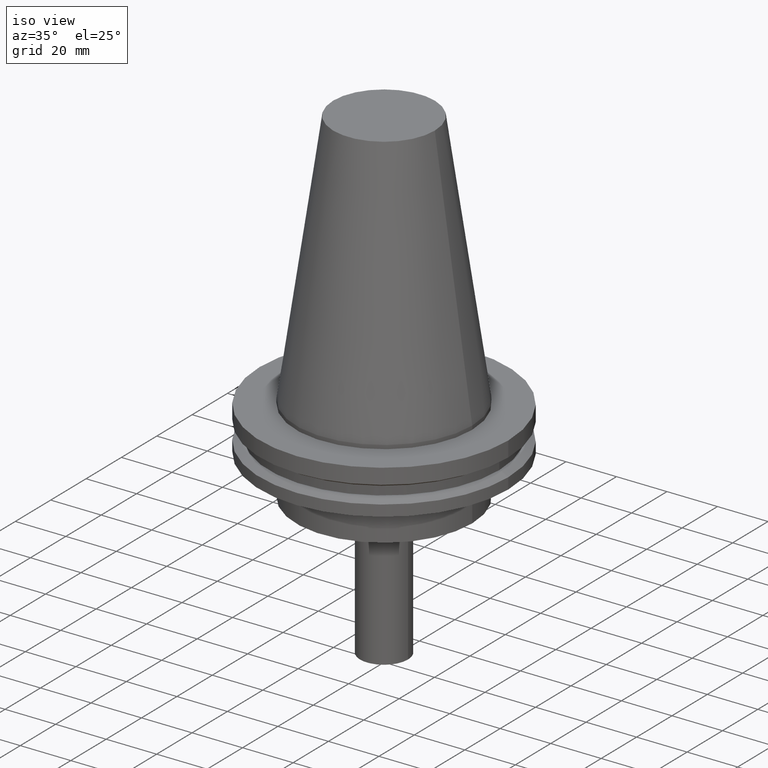
[diagram: clean part render]
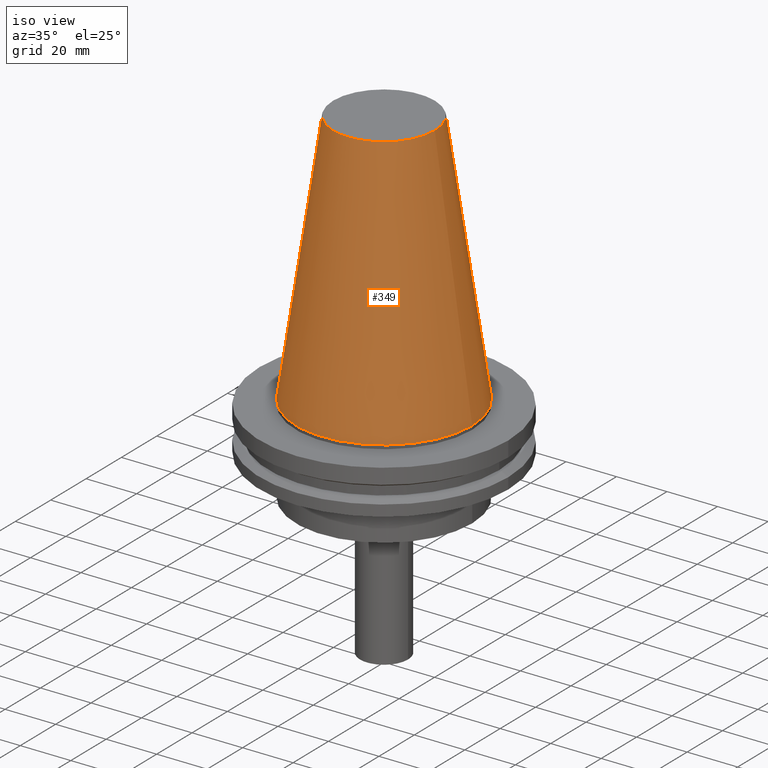
[diagram: tour spotlight — one face highlighted and labeled with its STEP entity id]
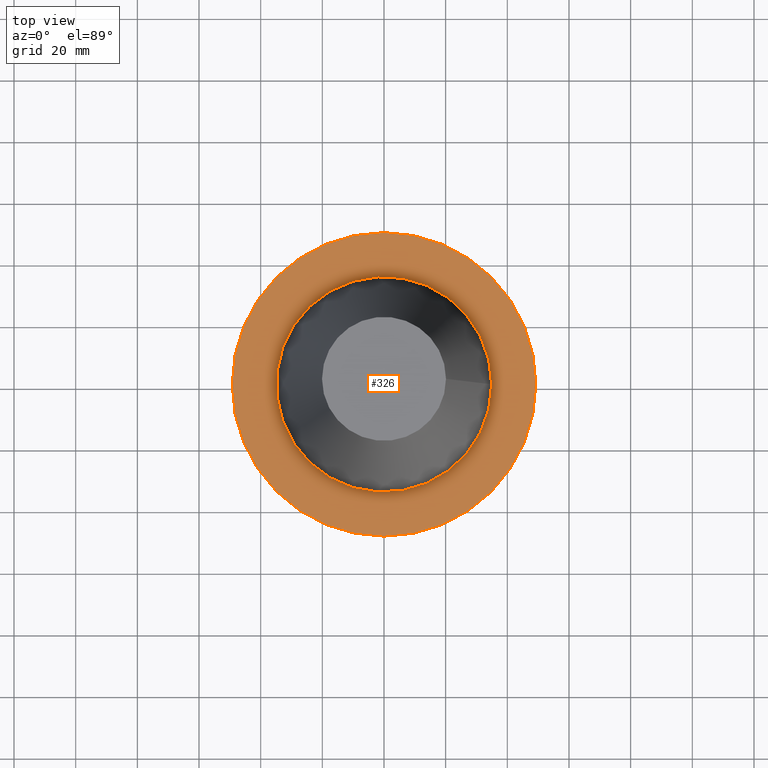
[diagram: tour spotlight — one face highlighted and labeled with its STEP entity id]
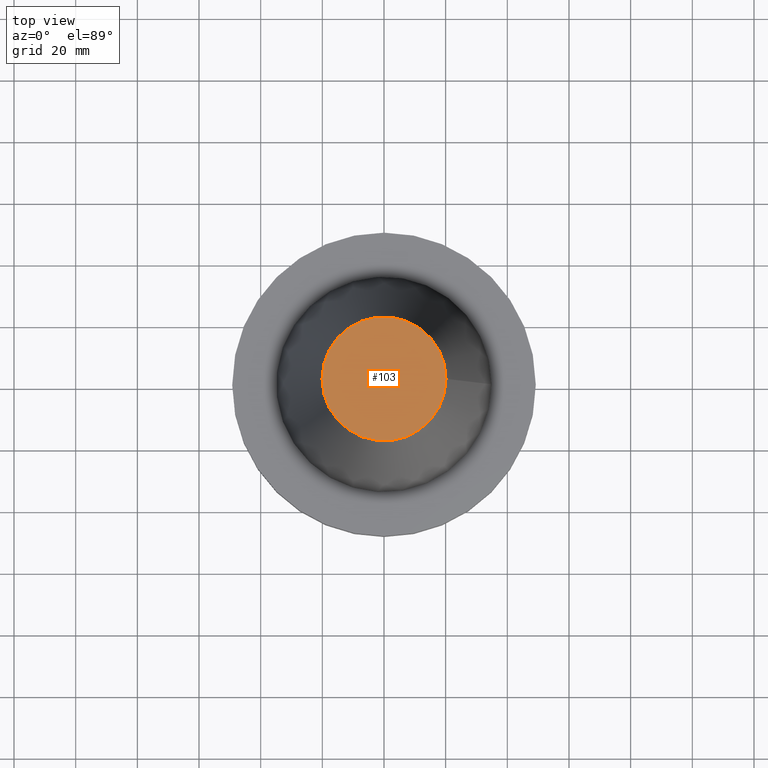
[diagram: tour spotlight — one face highlighted and labeled with its STEP entity id]
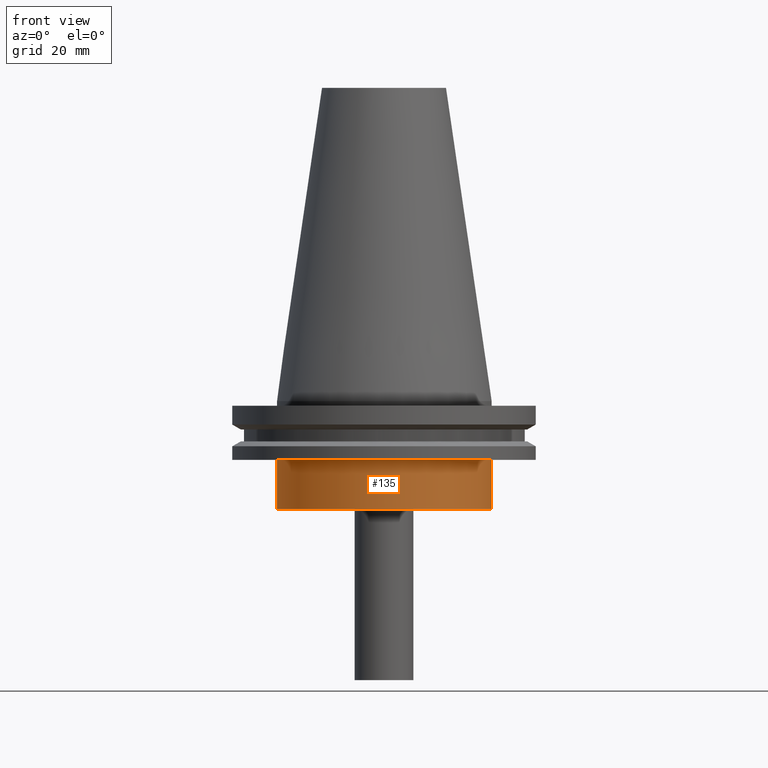
[diagram: tour spotlight — one face highlighted and labeled with its STEP entity id]
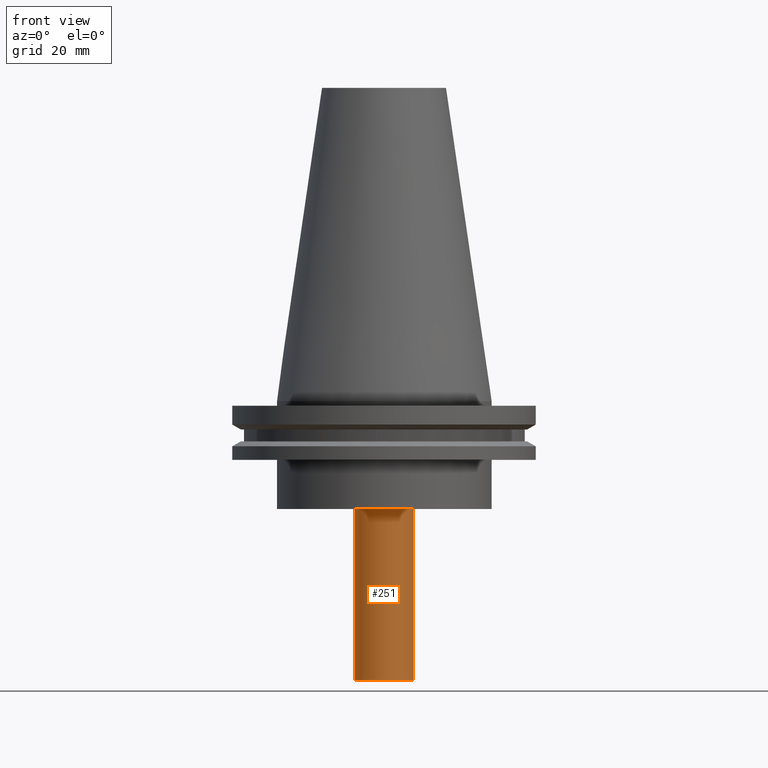
[diagram: tour spotlight — one face highlighted and labeled with its STEP entity id]
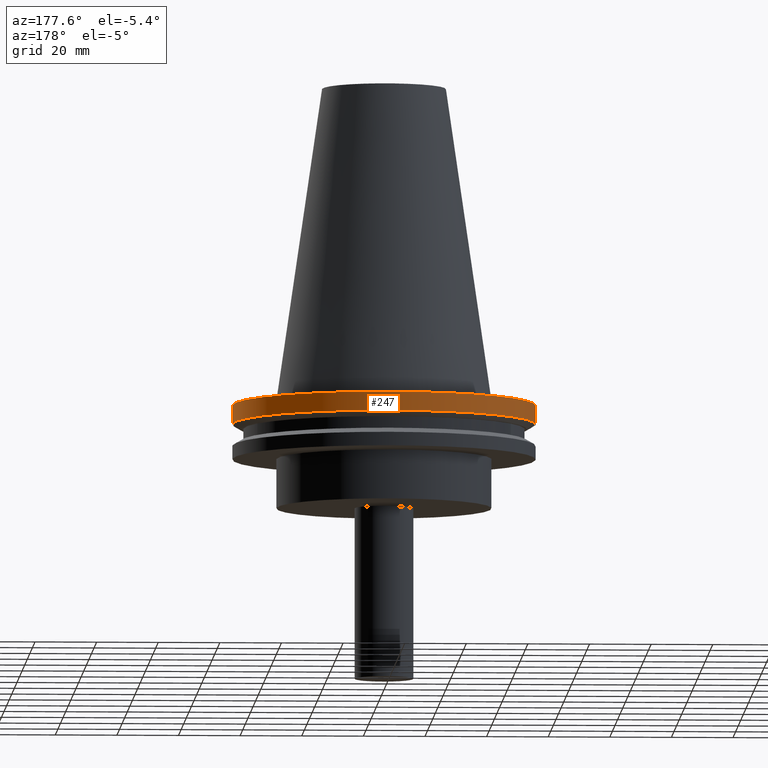
[diagram: tour spotlight — one face highlighted and labeled with its STEP entity id]
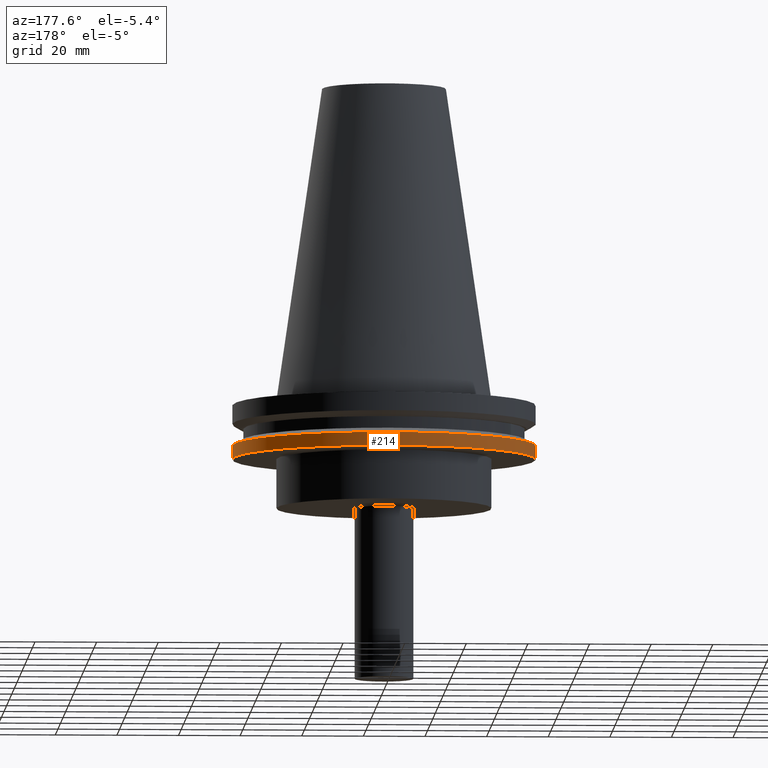
[diagram: tour spotlight — one face highlighted and labeled with its STEP entity id]
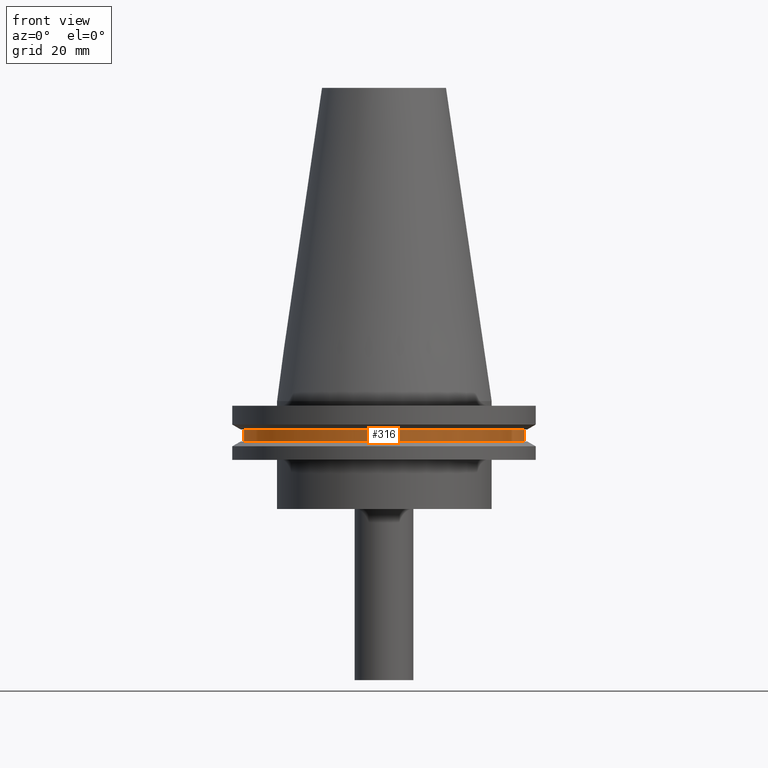
[diagram: tour spotlight — one face highlighted and labeled with its STEP entity id]
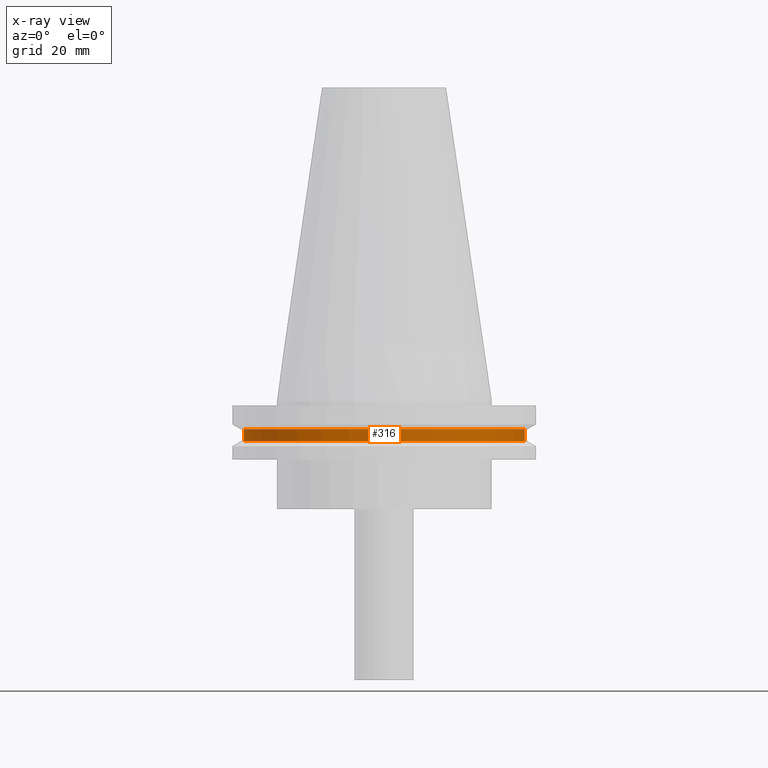
[diagram: x-ray of the same camera — body ghosted, this tour face saturated]
A machine part: a face-by-face anatomy tour. The part has 16 B-rep faces; the first image is the clean iso view, then the 8 largest visible faces are spotlighted one at a time (largest first), each with its STEP entity span.

Face 1 — iso view, entity #349. In plain terms, the highlighted conical surface has half-angle 8.297 deg.
Definition (entity closure, byte-faithful):
#18 = CARTESIAN_POINT ( 'NONE',  ( 0.000000000000000000, 0.000000000000000000, 0.000000000000000000 ) ) ;
#21 = EDGE_CURVE ( 'NONE', #136, #136, #39, .T. ) ;
#35 = DIRECTION ( 'NONE',  ( -0.000000000000000000, -0.000000000000000000, 1.000000000000000000 ) ) ;
#39 = CIRCLE ( 'NONE', #297, 34.92499999999999005 ) ;
#40 = CONICAL_SURFACE ( 'NONE', #194, 34.92499999999999005, 0.1448138465474119452 ) ;
#86 = CARTESIAN_POINT ( 'NONE',  ( 20.10819343178871321, 0.000000000000000000, 101.5999999999999801 ) ) ;
#95 = DIRECTION ( 'NONE',  ( 1.000000000000000000, 0.000000000000000000, 0.000000000000000000 ) ) ;
#105 = DIRECTION ( 'NONE',  ( 0.000000000000000000, 0.000000000000000000, -1.000000000000000000 ) ) ;
#112 = DIRECTION ( 'NONE',  ( -1.000000000000000000, 0.000000000000000000, 0.000000000000000000 ) ) ;
#124 = ORIENTED_EDGE ( 'NONE', *, *, #364, .F. ) ;
#136 = VERTEX_POINT ( 'NONE', #262 ) ;
#140 = DIRECTION ( 'NONE',  ( 1.000000000000000000, 0.000000000000000000, 0.000000000000000000 ) ) ;
#143 = FACE_BOUND ( 'NONE', #250, .T. ) ;
#163 = AXIS2_PLACEMENT_3D ( 'NONE', #357, #298, #140 ) ;
#194 = AXIS2_PLACEMENT_3D ( 'NONE', #18, #105, #112 ) ;
#250 = EDGE_LOOP ( 'NONE', ( #124 ) ) ;
#262 = CARTESIAN_POINT ( 'NONE',  ( 34.92499999999999005, 0.000000000000000000, 0.000000000000000000 ) ) ;
#272 = FACE_OUTER_BOUND ( 'NONE', #337, .T. ) ;
#276 = VERTEX_POINT ( 'NONE', #86 ) ;
#297 = AXIS2_PLACEMENT_3D ( 'NONE', #317, #35, #95 ) ;
#298 = DIRECTION ( 'NONE',  ( -0.000000000000000000, -0.000000000000000000, 1.000000000000000000 ) ) ;
#315 = ORIENTED_EDGE ( 'NONE', *, *, #21, .T. ) ;
#317 = CARTESIAN_POINT ( 'NONE',  ( 0.000000000000000000, 0.000000000000000000, 0.000000000000000000 ) ) ;
#337 = EDGE_LOOP ( 'NONE', ( #315 ) ) ;
#338 = CIRCLE ( 'NONE', #163, 20.10819343178871321 ) ;
#349 = ADVANCED_FACE ( 'NONE', ( #143, #272 ), #40, .T. ) ;
#357 = CARTESIAN_POINT ( 'NONE',  ( 0.000000000000000000, 0.000000000000000000, 101.5999999999999801 ) ) ;
#364 = EDGE_CURVE ( 'NONE', #276, #276, #338, .T. ) ;

Face 2 — top view, entity #326. In plain terms, the highlighted planar face has unit normal (0, 0, -1).
Definition (entity closure, byte-faithful):
#26 = CARTESIAN_POINT ( 'NONE',  ( 0.000000000000000000, 49.21499999999999631, -1.499999999999992895 ) ) ;
#27 = EDGE_CURVE ( 'NONE', #109, #109, #356, .T. ) ;
#43 = CARTESIAN_POINT ( 'NONE',  ( 0.000000000000000000, 0.000000000000000000, -1.499999999999987566 ) ) ;
#49 = PLANE ( 'NONE',  #139 ) ;
#65 = EDGE_LOOP ( 'NONE', ( #244 ) ) ;
#82 = DIRECTION ( 'NONE',  ( -1.000000000000000000, 0.000000000000000000, -0.000000000000000000 ) ) ;
#91 = EDGE_LOOP ( 'NONE', ( #342 ) ) ;
#104 = CIRCLE ( 'NONE', #177, 34.92499999999999005 ) ;
#109 = VERTEX_POINT ( 'NONE', #146 ) ;
#139 = AXIS2_PLACEMENT_3D ( 'NONE', #26, #173, #82 ) ;
#146 = CARTESIAN_POINT ( 'NONE',  ( 49.21499999999999631, 0.000000000000000000, -1.499999999999987566 ) ) ;
#170 = EDGE_CURVE ( 'NONE', #314, #314, #104, .T. ) ;
#173 = DIRECTION ( 'NONE',  ( 0.000000000000000000, 0.000000000000000000, -1.000000000000000000 ) ) ;
#177 = AXIS2_PLACEMENT_3D ( 'NONE', #43, #195, #288 ) ;
#195 = DIRECTION ( 'NONE',  ( -0.000000000000000000, -0.000000000000000000, 1.000000000000000000 ) ) ;
#203 = FACE_BOUND ( 'NONE', #91, .T. ) ;
#217 = CARTESIAN_POINT ( 'NONE',  ( 0.000000000000000000, 0.000000000000000000, -1.499999999999987566 ) ) ;
#244 = ORIENTED_EDGE ( 'NONE', *, *, #27, .T. ) ;
#283 = DIRECTION ( 'NONE',  ( 1.000000000000000000, 0.000000000000000000, 0.000000000000000000 ) ) ;
#288 = DIRECTION ( 'NONE',  ( 1.000000000000000000, 0.000000000000000000, 0.000000000000000000 ) ) ;
#310 = CARTESIAN_POINT ( 'NONE',  ( 34.92499999999999005, 0.000000000000000000, -1.499999999999987566 ) ) ;
#314 = VERTEX_POINT ( 'NONE', #310 ) ;
#318 = DIRECTION ( 'NONE',  ( -0.000000000000000000, -0.000000000000000000, 1.000000000000000000 ) ) ;
#326 = ADVANCED_FACE ( 'NONE', ( #203, #362 ), #49, .F. ) ;
#342 = ORIENTED_EDGE ( 'NONE', *, *, #170, .F. ) ;
#356 = CIRCLE ( 'NONE', #385, 49.21499999999999631 ) ;
#362 = FACE_OUTER_BOUND ( 'NONE', #65, .T. ) ;
#385 = AXIS2_PLACEMENT_3D ( 'NONE', #217, #318, #283 ) ;

Face 3 — top view, entity #103. In plain terms, the highlighted planar face has unit normal (0, 0, -1).
Definition (entity closure, byte-faithful):
#66 = ORIENTED_EDGE ( 'NONE', *, *, #364, .T. ) ;
#76 = DIRECTION ( 'NONE',  ( 0.000000000000000000, 0.000000000000000000, -1.000000000000000000 ) ) ;
#86 = CARTESIAN_POINT ( 'NONE',  ( 20.10819343178871321, 0.000000000000000000, 101.5999999999999801 ) ) ;
#101 = CARTESIAN_POINT ( 'NONE',  ( 0.000000000000000000, 20.10819343178871321, 101.5999999999999943 ) ) ;
#103 = ADVANCED_FACE ( 'NONE', ( #229 ), #259, .F. ) ;
#138 = AXIS2_PLACEMENT_3D ( 'NONE', #101, #76, #196 ) ;
#140 = DIRECTION ( 'NONE',  ( 1.000000000000000000, 0.000000000000000000, 0.000000000000000000 ) ) ;
#163 = AXIS2_PLACEMENT_3D ( 'NONE', #357, #298, #140 ) ;
#196 = DIRECTION ( 'NONE',  ( -1.000000000000000000, 0.000000000000000000, -0.000000000000000000 ) ) ;
#229 = FACE_OUTER_BOUND ( 'NONE', #344, .T. ) ;
#259 = PLANE ( 'NONE',  #138 ) ;
#276 = VERTEX_POINT ( 'NONE', #86 ) ;
#298 = DIRECTION ( 'NONE',  ( -0.000000000000000000, -0.000000000000000000, 1.000000000000000000 ) ) ;
#338 = CIRCLE ( 'NONE', #163, 20.10819343178871321 ) ;
#344 = EDGE_LOOP ( 'NONE', ( #66 ) ) ;
#357 = CARTESIAN_POINT ( 'NONE',  ( 0.000000000000000000, 0.000000000000000000, 101.5999999999999801 ) ) ;
#364 = EDGE_CURVE ( 'NONE', #276, #276, #338, .T. ) ;

Face 4 — front view, entity #135. In plain terms, the highlighted cylindrical surface (bore or boss wall) has radius 34.925 mm, axis along (-0, -0, 1).
Definition (entity closure, byte-faithful):
#3 = EDGE_LOOP ( 'NONE', ( #117 ) ) ;
#96 = CARTESIAN_POINT ( 'NONE',  ( 0.000000000000000000, 0.000000000000000000, 101.5999999999999943 ) ) ;
#111 = EDGE_CURVE ( 'NONE', #373, #373, #206, .T. ) ;
#117 = ORIENTED_EDGE ( 'NONE', *, *, #111, .F. ) ;
#135 = ADVANCED_FACE ( 'NONE', ( #193, #323 ), #322, .T. ) ;
#159 = AXIS2_PLACEMENT_3D ( 'NONE', #165, #381, #346 ) ;
#165 = CARTESIAN_POINT ( 'NONE',  ( 0.000000000000000000, 0.000000000000000000, -19.04999999999999716 ) ) ;
#190 = DIRECTION ( 'NONE',  ( -0.000000000000000000, -0.000000000000000000, 1.000000000000000000 ) ) ;
#191 = AXIS2_PLACEMENT_3D ( 'NONE', #96, #190, #382 ) ;
#193 = FACE_OUTER_BOUND ( 'NONE', #3, .T. ) ;
#202 = DIRECTION ( 'NONE',  ( -0.000000000000000000, -0.000000000000000000, 1.000000000000000000 ) ) ;
#206 = CIRCLE ( 'NONE', #159, 34.92499999999999716 ) ;
#231 = CIRCLE ( 'NONE', #321, 34.92499999999999716 ) ;
#248 = VERTEX_POINT ( 'NONE', #363 ) ;
#264 = EDGE_CURVE ( 'NONE', #248, #248, #231, .T. ) ;
#270 = CARTESIAN_POINT ( 'NONE',  ( 0.000000000000000000, 0.000000000000000000, -35.00000000000000000 ) ) ;
#278 = ORIENTED_EDGE ( 'NONE', *, *, #264, .T. ) ;
#307 = CARTESIAN_POINT ( 'NONE',  ( 34.92499999999999716, 0.000000000000000000, -19.04999999999999716 ) ) ;
#312 = EDGE_LOOP ( 'NONE', ( #278 ) ) ;
#321 = AXIS2_PLACEMENT_3D ( 'NONE', #270, #202, #331 ) ;
#322 = CYLINDRICAL_SURFACE ( 'NONE', #191, 34.92499999999999716 ) ;
#323 = FACE_OUTER_BOUND ( 'NONE', #312, .T. ) ;
#331 = DIRECTION ( 'NONE',  ( 1.000000000000000000, 0.000000000000000000, 0.000000000000000000 ) ) ;
#346 = DIRECTION ( 'NONE',  ( 1.000000000000000000, 0.000000000000000000, 0.000000000000000000 ) ) ;
#363 = CARTESIAN_POINT ( 'NONE',  ( 34.92499999999999716, 0.000000000000000000, -35.00000000000000000 ) ) ;
#373 = VERTEX_POINT ( 'NONE', #307 ) ;
#381 = DIRECTION ( 'NONE',  ( -0.000000000000000000, -0.000000000000000000, 1.000000000000000000 ) ) ;
#382 = DIRECTION ( 'NONE',  ( 1.000000000000000000, 0.000000000000000000, 0.000000000000000000 ) ) ;

Face 5 — front view, entity #251. In plain terms, the highlighted cylindrical surface (bore or boss wall) has radius 9.525 mm, axis along (-0, -0, 1).
Definition (entity closure, byte-faithful):
#5 = EDGE_LOOP ( 'NONE', ( #115 ) ) ;
#8 = CIRCLE ( 'NONE', #37, 9.525000000000000355 ) ;
#15 = CARTESIAN_POINT ( 'NONE',  ( 0.000000000000000000, 0.000000000000000000, -35.00000000000000000 ) ) ;
#32 = CARTESIAN_POINT ( 'NONE',  ( 9.525000000000000355, 0.000000000000000000, -90.50000000000001421 ) ) ;
#37 = AXIS2_PLACEMENT_3D ( 'NONE', #376, #354, #348 ) ;
#47 = CARTESIAN_POINT ( 'NONE',  ( 0.000000000000000000, 0.000000000000000000, 0.000000000000000000 ) ) ;
#48 = EDGE_CURVE ( 'NONE', #125, #125, #8, .T. ) ;
#59 = AXIS2_PLACEMENT_3D ( 'NONE', #47, #81, #294 ) ;
#63 = ORIENTED_EDGE ( 'NONE', *, *, #48, .T. ) ;
#74 = EDGE_CURVE ( 'NONE', #114, #114, #285, .T. ) ;
#81 = DIRECTION ( 'NONE',  ( -0.000000000000000000, -0.000000000000000000, 1.000000000000000000 ) ) ;
#114 = VERTEX_POINT ( 'NONE', #273 ) ;
#115 = ORIENTED_EDGE ( 'NONE', *, *, #74, .F. ) ;
#125 = VERTEX_POINT ( 'NONE', #32 ) ;
#131 = DIRECTION ( 'NONE',  ( 1.000000000000000000, 0.000000000000000000, 0.000000000000000000 ) ) ;
#175 = CYLINDRICAL_SURFACE ( 'NONE', #59, 9.524999999999998579 ) ;
#221 = DIRECTION ( 'NONE',  ( -0.000000000000000000, -0.000000000000000000, 1.000000000000000000 ) ) ;
#232 = FACE_OUTER_BOUND ( 'NONE', #339, .T. ) ;
#251 = ADVANCED_FACE ( 'NONE', ( #301, #232 ), #175, .T. ) ;
#263 = AXIS2_PLACEMENT_3D ( 'NONE', #15, #221, #131 ) ;
#273 = CARTESIAN_POINT ( 'NONE',  ( 9.524999999999998579, 0.000000000000000000, -35.00000000000000000 ) ) ;
#285 = CIRCLE ( 'NONE', #263, 9.524999999999998579 ) ;
#294 = DIRECTION ( 'NONE',  ( 1.000000000000000000, 0.000000000000000000, 0.000000000000000000 ) ) ;
#301 = FACE_OUTER_BOUND ( 'NONE', #5, .T. ) ;
#339 = EDGE_LOOP ( 'NONE', ( #63 ) ) ;
#348 = DIRECTION ( 'NONE',  ( 1.000000000000000000, 0.000000000000000000, 0.000000000000000000 ) ) ;
#354 = DIRECTION ( 'NONE',  ( -0.000000000000000000, -0.000000000000000000, 1.000000000000000000 ) ) ;
#376 = CARTESIAN_POINT ( 'NONE',  ( 0.000000000000000000, 0.000000000000000000, -90.50000000000001421 ) ) ;

Face 6 — auxiliary view, entity #247. In plain terms, the highlighted cylindrical surface (bore or boss wall) has radius 49.215 mm, axis along (-0, -0, 1).
Definition (entity closure, byte-faithful):
#4 = CARTESIAN_POINT ( 'NONE',  ( 49.21500000000000341, 0.000000000000000000, -7.602389855251287187 ) ) ;
#27 = EDGE_CURVE ( 'NONE', #109, #109, #356, .T. ) ;
#60 = VERTEX_POINT ( 'NONE', #4 ) ;
#100 = DIRECTION ( 'NONE',  ( -0.000000000000000000, -0.000000000000000000, 1.000000000000000000 ) ) ;
#107 = CYLINDRICAL_SURFACE ( 'NONE', #253, 49.21499999999999631 ) ;
#109 = VERTEX_POINT ( 'NONE', #146 ) ;
#146 = CARTESIAN_POINT ( 'NONE',  ( 49.21499999999999631, 0.000000000000000000, -1.499999999999987566 ) ) ;
#155 = EDGE_LOOP ( 'NONE', ( #341 ) ) ;
#160 = CIRCLE ( 'NONE', #266, 49.21500000000000341 ) ;
#161 = CARTESIAN_POINT ( 'NONE',  ( 0.000000000000000000, 0.000000000000000000, -7.602389855251287187 ) ) ;
#164 = EDGE_CURVE ( 'NONE', #60, #60, #160, .T. ) ;
#217 = CARTESIAN_POINT ( 'NONE',  ( 0.000000000000000000, 0.000000000000000000, -1.499999999999987566 ) ) ;
#222 = DIRECTION ( 'NONE',  ( 1.000000000000000000, 0.000000000000000000, 0.000000000000000000 ) ) ;
#235 = EDGE_LOOP ( 'NONE', ( #282 ) ) ;
#238 = DIRECTION ( 'NONE',  ( -0.000000000000000000, -0.000000000000000000, 1.000000000000000000 ) ) ;
#247 = ADVANCED_FACE ( 'NONE', ( #265, #390 ), #107, .T. ) ;
#253 = AXIS2_PLACEMENT_3D ( 'NONE', #386, #238, #327 ) ;
#265 = FACE_OUTER_BOUND ( 'NONE', #155, .T. ) ;
#266 = AXIS2_PLACEMENT_3D ( 'NONE', #161, #100, #222 ) ;
#282 = ORIENTED_EDGE ( 'NONE', *, *, #164, .T. ) ;
#283 = DIRECTION ( 'NONE',  ( 1.000000000000000000, 0.000000000000000000, 0.000000000000000000 ) ) ;
#318 = DIRECTION ( 'NONE',  ( -0.000000000000000000, -0.000000000000000000, 1.000000000000000000 ) ) ;
#327 = DIRECTION ( 'NONE',  ( 1.000000000000000000, 0.000000000000000000, 0.000000000000000000 ) ) ;
#341 = ORIENTED_EDGE ( 'NONE', *, *, #27, .F. ) ;
#356 = CIRCLE ( 'NONE', #385, 49.21499999999999631 ) ;
#385 = AXIS2_PLACEMENT_3D ( 'NONE', #217, #318, #283 ) ;
#386 = CARTESIAN_POINT ( 'NONE',  ( 0.000000000000000000, 0.000000000000000000, 101.5999999999999943 ) ) ;
#390 = FACE_OUTER_BOUND ( 'NONE', #235, .T. ) ;

Face 7 — auxiliary view, entity #214. In plain terms, the highlighted cylindrical surface (bore or boss wall) has radius 49.215 mm, axis along (-0, -0, 1).
Definition (entity closure, byte-faithful):
#9 = AXIS2_PLACEMENT_3D ( 'NONE', #236, #141, #204 ) ;
#20 = CYLINDRICAL_SURFACE ( 'NONE', #9, 49.21499999999998920 ) ;
#38 = DIRECTION ( 'NONE',  ( 1.000000000000000000, 0.000000000000000000, 0.000000000000000000 ) ) ;
#50 = DIRECTION ( 'NONE',  ( 1.000000000000000000, 0.000000000000000000, 0.000000000000000000 ) ) ;
#56 = AXIS2_PLACEMENT_3D ( 'NONE', #258, #380, #38 ) ;
#89 = ORIENTED_EDGE ( 'NONE', *, *, #271, .T. ) ;
#123 = CARTESIAN_POINT ( 'NONE',  ( 49.21499999999998920, 0.000000000000000000, -14.65761014474876944 ) ) ;
#141 = DIRECTION ( 'NONE',  ( -0.000000000000000000, -0.000000000000000000, 1.000000000000000000 ) ) ;
#148 = EDGE_CURVE ( 'NONE', #242, #242, #299, .T. ) ;
#152 = VERTEX_POINT ( 'NONE', #281 ) ;
#174 = AXIS2_PLACEMENT_3D ( 'NONE', #360, #230, #50 ) ;
#180 = CIRCLE ( 'NONE', #174, 49.21499999999998920 ) ;
#199 = FACE_OUTER_BOUND ( 'NONE', #369, .T. ) ;
#200 = FACE_OUTER_BOUND ( 'NONE', #241, .T. ) ;
#204 = DIRECTION ( 'NONE',  ( 1.000000000000000000, 0.000000000000000000, 0.000000000000000000 ) ) ;
#214 = ADVANCED_FACE ( 'NONE', ( #199, #200 ), #20, .T. ) ;
#230 = DIRECTION ( 'NONE',  ( -0.000000000000000000, -0.000000000000000000, 1.000000000000000000 ) ) ;
#236 = CARTESIAN_POINT ( 'NONE',  ( 0.000000000000000000, 0.000000000000000000, 101.5999999999999943 ) ) ;
#241 = EDGE_LOOP ( 'NONE', ( #89 ) ) ;
#242 = VERTEX_POINT ( 'NONE', #123 ) ;
#258 = CARTESIAN_POINT ( 'NONE',  ( 0.000000000000000000, 0.000000000000000000, -14.65761014474876944 ) ) ;
#271 = EDGE_CURVE ( 'NONE', #152, #152, #180, .T. ) ;
#280 = ORIENTED_EDGE ( 'NONE', *, *, #148, .F. ) ;
#281 = CARTESIAN_POINT ( 'NONE',  ( 49.21499999999998920, 0.000000000000000000, -19.04999999999999716 ) ) ;
#299 = CIRCLE ( 'NONE', #56, 49.21499999999998920 ) ;
#360 = CARTESIAN_POINT ( 'NONE',  ( 0.000000000000000000, 0.000000000000000000, -19.04999999999999716 ) ) ;
#369 = EDGE_LOOP ( 'NONE', ( #280 ) ) ;
#380 = DIRECTION ( 'NONE',  ( -0.000000000000000000, -0.000000000000000000, 1.000000000000000000 ) ) ;

Face 8 — front view, entity #316. An x-ray twin of the same camera follows (body ghosted, this face saturated) — the face is partly hidden behind the body. In plain terms, the highlighted cylindrical surface (bore or boss wall) has radius 45.645 mm, axis along (-0, -0, 1).
Definition (entity closure, byte-faithful):
#1 = AXIS2_PLACEMENT_3D ( 'NONE', #110, #330, #234 ) ;
#53 = DIRECTION ( 'NONE',  ( -0.000000000000000000, -0.000000000000000000, 1.000000000000000000 ) ) ;
#72 = CIRCLE ( 'NONE', #79, 45.64500000000000313 ) ;
#79 = AXIS2_PLACEMENT_3D ( 'NONE', #83, #53, #176 ) ;
#83 = CARTESIAN_POINT ( 'NONE',  ( 0.000000000000000000, 0.000000000000000000, -13.05499999999999794 ) ) ;
#110 = CARTESIAN_POINT ( 'NONE',  ( 0.000000000000000000, 0.000000000000000000, 101.5999999999999943 ) ) ;
#137 = CYLINDRICAL_SURFACE ( 'NONE', #1, 45.64500000000000313 ) ;
#145 = ORIENTED_EDGE ( 'NONE', *, *, #309, .F. ) ;
#172 = CARTESIAN_POINT ( 'NONE',  ( 0.000000000000000000, 0.000000000000000000, -9.204999999999991189 ) ) ;
#176 = DIRECTION ( 'NONE',  ( 1.000000000000000000, 0.000000000000000000, 0.000000000000000000 ) ) ;
#179 = CARTESIAN_POINT ( 'NONE',  ( 45.64500000000000313, 0.000000000000000000, -9.204999999999991189 ) ) ;
#183 = CARTESIAN_POINT ( 'NONE',  ( 45.64500000000000313, 0.000000000000000000, -13.05499999999999794 ) ) ;
#205 = VERTEX_POINT ( 'NONE', #179 ) ;
#212 = VERTEX_POINT ( 'NONE', #183 ) ;
#234 = DIRECTION ( 'NONE',  ( 1.000000000000000000, 0.000000000000000000, 0.000000000000000000 ) ) ;
#277 = EDGE_CURVE ( 'NONE', #212, #212, #72, .T. ) ;
#287 = CIRCLE ( 'NONE', #358, 45.64500000000000313 ) ;
#296 = DIRECTION ( 'NONE',  ( 1.000000000000000000, 0.000000000000000000, 0.000000000000000000 ) ) ;
#303 = FACE_OUTER_BOUND ( 'NONE', #308, .T. ) ;
#308 = EDGE_LOOP ( 'NONE', ( #145 ) ) ;
#309 = EDGE_CURVE ( 'NONE', #205, #205, #287, .T. ) ;
#316 = ADVANCED_FACE ( 'NONE', ( #303, #359 ), #137, .T. ) ;
#330 = DIRECTION ( 'NONE',  ( -0.000000000000000000, -0.000000000000000000, 1.000000000000000000 ) ) ;
#334 = DIRECTION ( 'NONE',  ( -0.000000000000000000, -0.000000000000000000, 1.000000000000000000 ) ) ;
#358 = AXIS2_PLACEMENT_3D ( 'NONE', #172, #334, #296 ) ;
#359 = FACE_OUTER_BOUND ( 'NONE', #393, .T. ) ;
#367 = ORIENTED_EDGE ( 'NONE', *, *, #277, .T. ) ;
#393 = EDGE_LOOP ( 'NONE', ( #367 ) ) ;